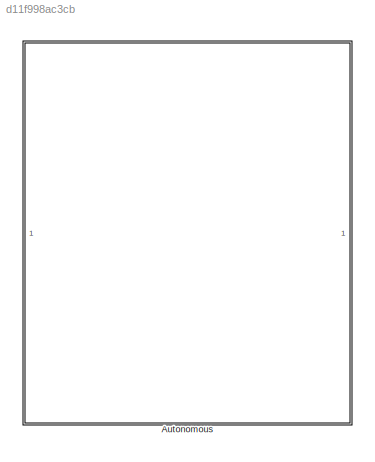
MODEL slx_d11f998ac3cb
KIND library
CONFIG AbsTol = auto
CONFIG EnableMultiTasking = off
CONFIG FixedStep = auto
CONFIG MaxStep = auto
CONFIG MinStep = auto
CONFIG RelTol = 1e-3
CONFIG SampleTimeConstraint = Unconstrained
CONFIG SolverName = VariableStepAuto
CONFIG StartTime = 0.0
CONFIG StopTime = 10.0
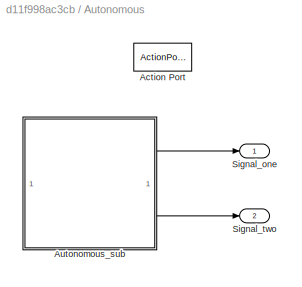
BLOCK [SubSystem] Autonomous
  TreatAsAtomicUnit = on
BLOCK [ActionPort] Autonomous/Action Port
  InitializeStates = reset
BLOCK [SubSystem] Autonomous/Autonomous_sub
  ReferencedSubsystem = Autonomous_sub
BLOCK [Outport] Autonomous/Signal_one
BLOCK [Outport] Autonomous/Signal_two
  Port = 2
LINE Autonomous/Autonomous_sub:1 -> Autonomous/Signal_one:1
LINE Autonomous/Autonomous_sub:2 -> Autonomous/Signal_two:1
